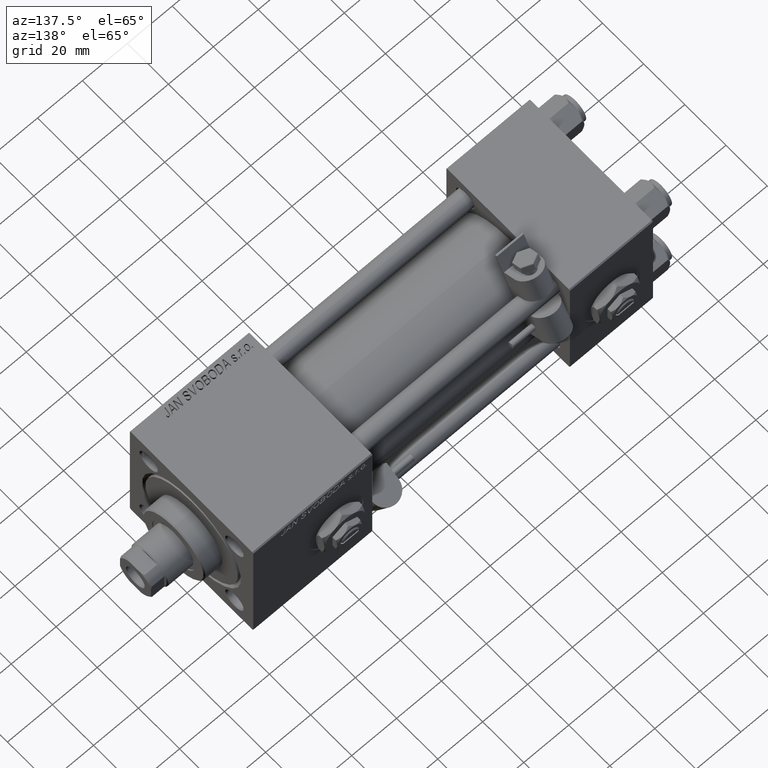
[diagram: clean part render]
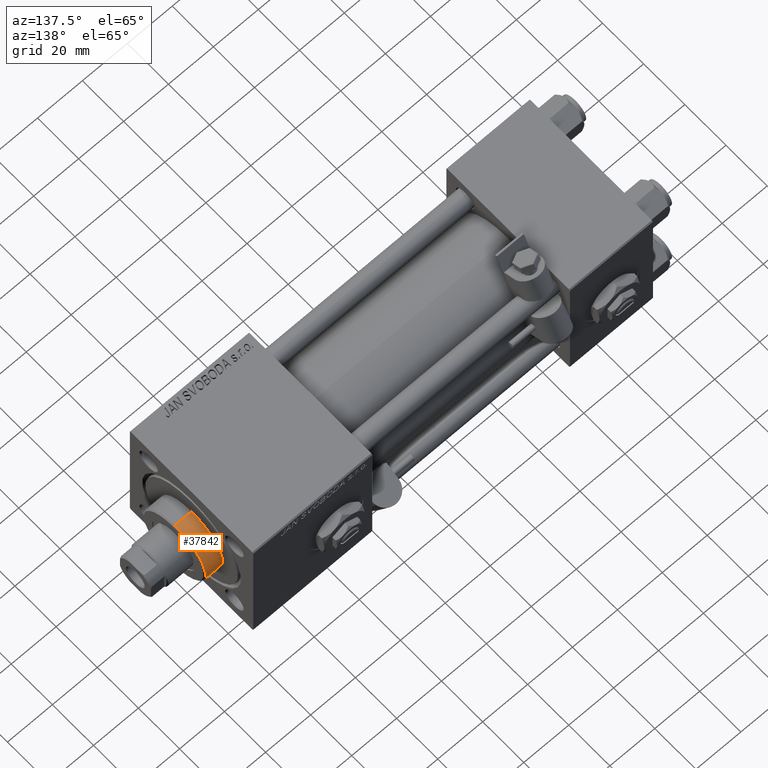
[diagram: same view with one face highlighted and labeled with its STEP entity id]
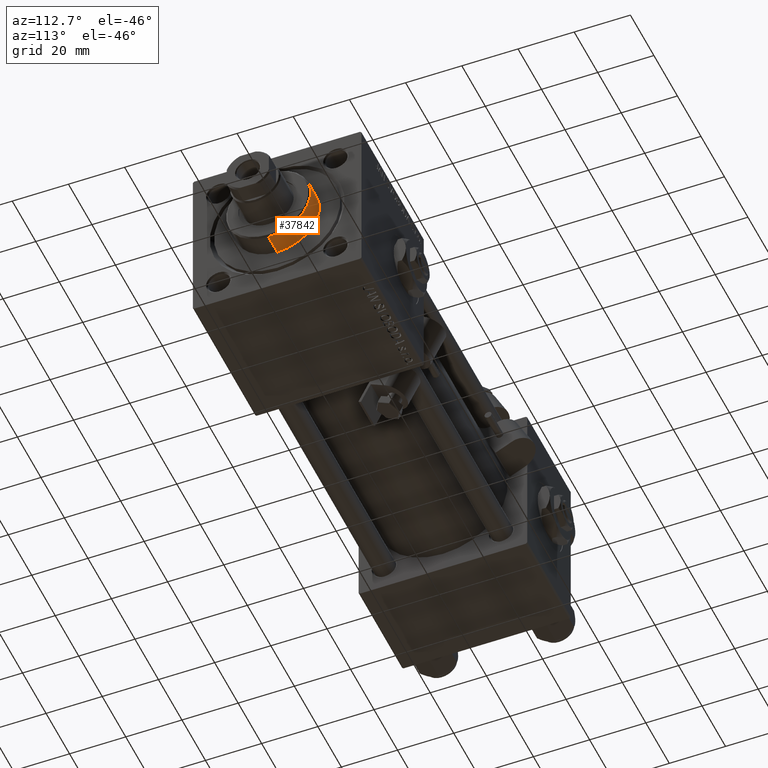
[diagram: same view with one face highlighted and labeled with its STEP entity id]
A machine part, auxiliary view. The second image highlights one B-rep face of the part: STEP entity #37842.
A second angle (auxiliary view) of the same face is appended — the face is thin or edge-on in the first view.
In plain terms, the highlighted cylindrical surface (partial cylindrical patch) has radius 15 mm, axis along (-1, -0, -0).
Its self-contained STEP definition (entity closure, byte-faithful):
#1143 = CIRCLE ( 'NONE', #36518, 15.00000000000000000 ) ;
#2919 = DIRECTION ( 'NONE',  ( -1.000000000000000000, 0.000000000000000000, 0.000000000000000000 ) ) ;
#3947 = VECTOR ( 'NONE', #11073, 1000.000000000000000 ) ;
#5302 = CARTESIAN_POINT ( 'NONE',  ( 15.00000000000000000, 1.836970198721029589E-15, 28.69999999999999929 ) ) ;
#7295 = VERTEX_POINT ( 'NONE', #16201 ) ;
#7374 = EDGE_CURVE ( 'NONE', #38085, #33968, #1143, .T. ) ;
#7835 = ORIENTED_EDGE ( 'NONE', *, *, #42804, .T. ) ;
#8027 = CARTESIAN_POINT ( 'NONE',  ( 0.000000000000000000, 0.000000000000000000, 36.20000000000000284 ) ) ;
#8284 = DIRECTION ( 'NONE',  ( 1.000000000000000000, 0.000000000000000000, 0.000000000000000000 ) ) ;
#8490 = CIRCLE ( 'NONE', #13628, 15.00000000000000000 ) ;
#9660 = ORIENTED_EDGE ( 'NONE', *, *, #7374, .T. ) ;
#10455 = CYLINDRICAL_SURFACE ( 'NONE', #12285, 15.00000000000000000 ) ;
#11073 = DIRECTION ( 'NONE',  ( -0.000000000000000000, -0.000000000000000000, -1.000000000000000000 ) ) ;
#12285 = AXIS2_PLACEMENT_3D ( 'NONE', #47931, #23157, #2919 ) ;
#13628 = AXIS2_PLACEMENT_3D ( 'NONE', #8027, #45752, #8284 ) ;
#14241 = CARTESIAN_POINT ( 'NONE',  ( 0.000000000000000000, 0.000000000000000000, 28.69999999999999929 ) ) ;
#16063 = EDGE_LOOP ( 'NONE', ( #29821, #7835, #9660, #46661 ) ) ;
#16201 = CARTESIAN_POINT ( 'NONE',  ( -15.00000000000000000, 0.000000000000000000, 36.20000000000000284 ) ) ;
#19287 = EDGE_CURVE ( 'NONE', #7295, #33968, #43982, .T. ) ;
#23157 = DIRECTION ( 'NONE',  ( -0.000000000000000000, -0.000000000000000000, -1.000000000000000000 ) ) ;
#23437 = FACE_OUTER_BOUND ( 'NONE', #16063, .T. ) ;
#25818 = CARTESIAN_POINT ( 'NONE',  ( -15.00000000000000000, 0.000000000000000000, 28.69999999999999929 ) ) ;
#27455 = DIRECTION ( 'NONE',  ( 0.000000000000000000, 0.000000000000000000, 1.000000000000000000 ) ) ;
#28295 = CARTESIAN_POINT ( 'NONE',  ( 15.00000000000000000, 1.836970198721029589E-15, 36.20000000000000284 ) ) ;
#29821 = ORIENTED_EDGE ( 'NONE', *, *, #50550, .T. ) ;
#33968 = VERTEX_POINT ( 'NONE', #25818 ) ;
#34047 = CARTESIAN_POINT ( 'NONE',  ( 15.00000000000000000, 1.836970198721029589E-15, 36.69999999999999574 ) ) ;
#36518 = AXIS2_PLACEMENT_3D ( 'NONE', #14241, #27455, #46864 ) ;
#37842 = ADVANCED_FACE ( 'NONE', ( #23437 ), #10455, .T. ) ;
#38085 = VERTEX_POINT ( 'NONE', #5302 ) ;
#39094 = VECTOR ( 'NONE', #42417, 1000.000000000000000 ) ;
#41047 = VERTEX_POINT ( 'NONE', #28295 ) ;
#42146 = LINE ( 'NONE', #34047, #39094 ) ;
#42417 = DIRECTION ( 'NONE',  ( -0.000000000000000000, -0.000000000000000000, -1.000000000000000000 ) ) ;
#42804 = EDGE_CURVE ( 'NONE', #41047, #38085, #42146, .T. ) ;
#43982 = LINE ( 'NONE', #48010, #3947 ) ;
#45752 = DIRECTION ( 'NONE',  ( 0.000000000000000000, 0.000000000000000000, -1.000000000000000000 ) ) ;
#46661 = ORIENTED_EDGE ( 'NONE', *, *, #19287, .F. ) ;
#46864 = DIRECTION ( 'NONE',  ( 1.000000000000000000, 0.000000000000000000, 0.000000000000000000 ) ) ;
#47931 = CARTESIAN_POINT ( 'NONE',  ( 0.000000000000000000, 0.000000000000000000, 36.69999999999999574 ) ) ;
#48010 = CARTESIAN_POINT ( 'NONE',  ( -15.00000000000000000, 0.000000000000000000, 36.69999999999999574 ) ) ;
#50550 = EDGE_CURVE ( 'NONE', #7295, #41047, #8490, .T. ) ;